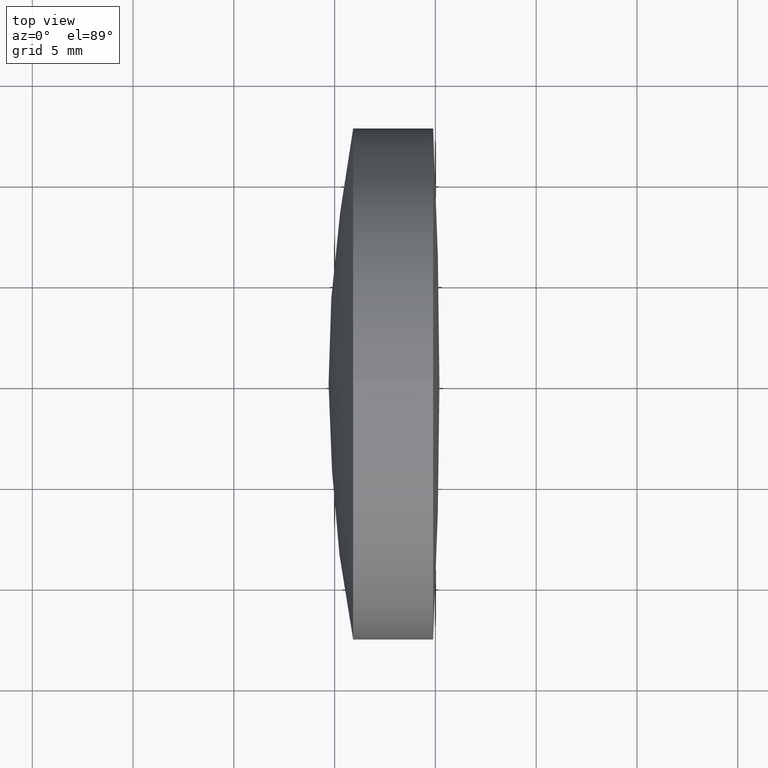
[diagram: clean part render]
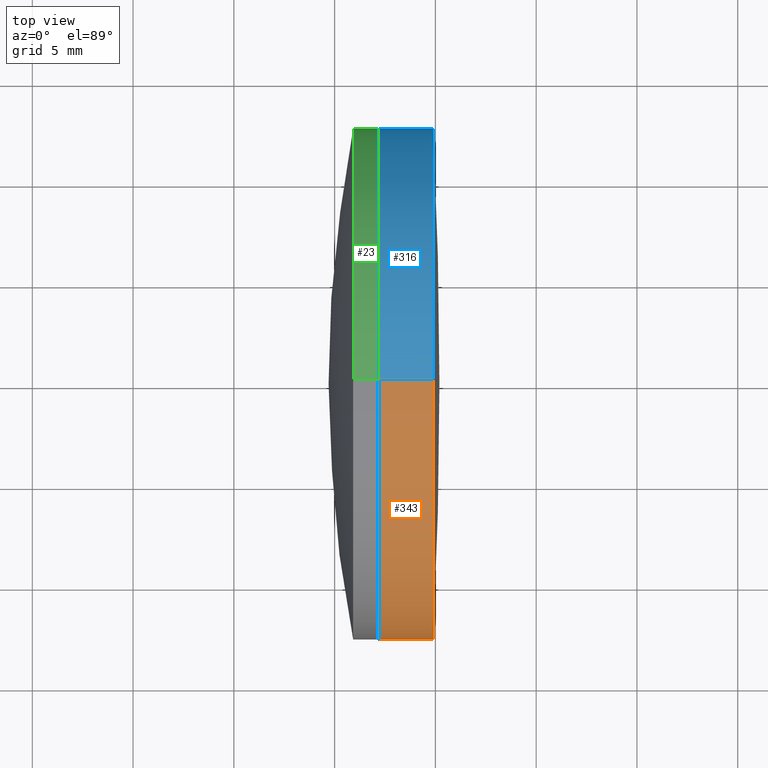
[diagram: same view with three faces highlighted in distinct colors, each labeled with its STEP entity id]
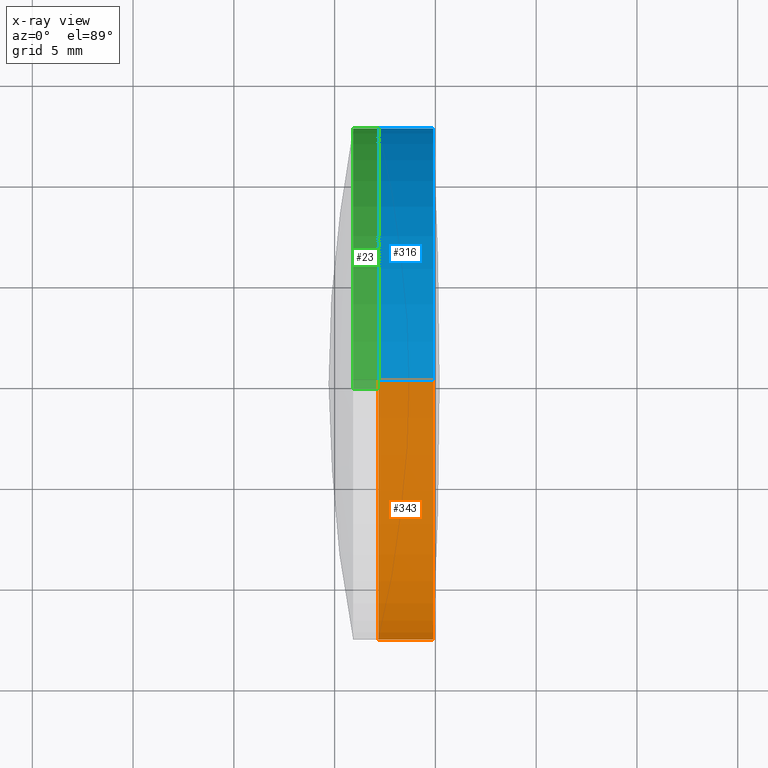
[diagram: x-ray of the same camera — body ghosted, the three highlighted faces saturated]
A machine part, top view with three faces highlighted in distinct colors.
The next image is the same camera in x-ray (body ghosted, the three faces saturated) — at least one of them is partly hidden behind the body in this view.
Their STEP definitions:

[orange] entity #343 — the highlighted cylindrical surface (partial cylindrical patch) has radius 12.7 mm, axis along (-1, -0, -0).
#15 = DIRECTION ( 'NONE',  ( 0.0000000000000000000, 0.0000000000000000000, 1.000000000000000000 ) ) ;
#25 = FACE_OUTER_BOUND ( 'NONE', #94, .T. ) ;
#28 = DIRECTION ( 'NONE',  ( 0.0000000000000000000, 0.0000000000000000000, 1.000000000000000000 ) ) ;
#41 = VERTEX_POINT ( 'NONE', #43 ) ;
#43 = CARTESIAN_POINT ( 'NONE',  ( 304.8890609031180400, 1.555301434917140200E-015, -12.70000000000001000 ) ) ;
#48 = ORIENTED_EDGE ( 'NONE', *, *, #153, .F. ) ;
#52 = CARTESIAN_POINT ( 'NONE',  ( -0.5519199926577972300, 1.555301434917141000E-015, -12.70000000000002100 ) ) ;
#56 = CARTESIAN_POINT ( 'NONE',  ( 304.8890609031180400, 0.0000000000000000000, 12.70000000000001000 ) ) ;
#65 = ORIENTED_EDGE ( 'NONE', *, *, #71, .T. ) ;
#67 = CARTESIAN_POINT ( 'NONE',  ( -0.5519199926577972300, 0.0000000000000000000, 0.0000000000000000000 ) ) ;
#70 = AXIS2_PLACEMENT_3D ( 'NONE', #104, #302, #346 ) ;
#71 = EDGE_CURVE ( 'NONE', #41, #274, #241, .T. ) ;
#80 = VERTEX_POINT ( 'NONE', #101 ) ;
#94 = EDGE_LOOP ( 'NONE', ( #48, #65, #100, #318 ) ) ;
#100 = ORIENTED_EDGE ( 'NONE', *, *, #138, .T. ) ;
#101 = CARTESIAN_POINT ( 'NONE',  ( 302.1767490561337600, 1.555301434917142000E-015, -12.70000000000002200 ) ) ;
#104 = CARTESIAN_POINT ( 'NONE',  ( 304.8890609031180400, 0.0000000000000000000, 0.0000000000000000000 ) ) ;
#138 = EDGE_CURVE ( 'NONE', #274, #191, #196, .T. ) ;
#153 = EDGE_CURVE ( 'NONE', #41, #80, #167, .T. ) ;
#161 = DIRECTION ( 'NONE',  ( -1.000000000000000000, -0.0000000000000000000, -0.0000000000000000000 ) ) ;
#167 = LINE ( 'NONE', #52, #314 ) ;
#170 = DIRECTION ( 'NONE',  ( -1.000000000000000000, -0.0000000000000000000, -0.0000000000000000000 ) ) ;
#175 = AXIS2_PLACEMENT_3D ( 'NONE', #67, #345, #28 ) ;
#183 = DIRECTION ( 'NONE',  ( -1.000000000000000000, -0.0000000000000000000, -0.0000000000000000000 ) ) ;
#191 = VERTEX_POINT ( 'NONE', #333 ) ;
#196 = LINE ( 'NONE', #328, #276 ) ;
#241 = CIRCLE ( 'NONE', #70, 12.70000000000001000 ) ;
#268 = CYLINDRICAL_SURFACE ( 'NONE', #175, 12.70000000000002100 ) ;
#274 = VERTEX_POINT ( 'NONE', #56 ) ;
#276 = VECTOR ( 'NONE', #161, 1000.000000000000000 ) ;
#287 = EDGE_CURVE ( 'NONE', #80, #191, #319, .T. ) ;
#302 = DIRECTION ( 'NONE',  ( -1.000000000000000000, -0.0000000000000000000, -0.0000000000000000000 ) ) ;
#311 = AXIS2_PLACEMENT_3D ( 'NONE', #335, #170, #15 ) ;
#314 = VECTOR ( 'NONE', #183, 1000.000000000000000 ) ;
#318 = ORIENTED_EDGE ( 'NONE', *, *, #287, .F. ) ;
#319 = CIRCLE ( 'NONE', #311, 12.70000000000003100 ) ;
#328 = CARTESIAN_POINT ( 'NONE',  ( -0.5519199926577972300, 0.0000000000000000000, 12.70000000000002100 ) ) ;
#333 = CARTESIAN_POINT ( 'NONE',  ( 302.1767490561337600, 0.0000000000000000000, 12.70000000000002900 ) ) ;
#335 = CARTESIAN_POINT ( 'NONE',  ( 302.1767490561337600, 0.0000000000000000000, 0.0000000000000000000 ) ) ;
#343 = ADVANCED_FACE ( 'NONE', ( #25 ), #268, .T. ) ;
#345 = DIRECTION ( 'NONE',  ( -1.000000000000000000, -0.0000000000000000000, -0.0000000000000000000 ) ) ;
#346 = DIRECTION ( 'NONE',  ( 0.0000000000000000000, 0.0000000000000000000, 1.000000000000000000 ) ) ;

[blue] entity #316 — the highlighted cylindrical surface (partial cylindrical patch) has radius 12.7 mm, axis along (-1, -0, -0).
#16 = DIRECTION ( 'NONE',  ( 0.0000000000000000000, 0.0000000000000000000, 1.000000000000000000 ) ) ;
#21 = EDGE_CURVE ( 'NONE', #191, #80, #323, .T. ) ;
#41 = VERTEX_POINT ( 'NONE', #43 ) ;
#43 = CARTESIAN_POINT ( 'NONE',  ( 304.8890609031180400, 1.555301434917140200E-015, -12.70000000000001000 ) ) ;
#52 = CARTESIAN_POINT ( 'NONE',  ( -0.5519199926577972300, 1.555301434917141000E-015, -12.70000000000002100 ) ) ;
#56 = CARTESIAN_POINT ( 'NONE',  ( 304.8890609031180400, 0.0000000000000000000, 12.70000000000001000 ) ) ;
#73 = DIRECTION ( 'NONE',  ( -1.000000000000000000, -0.0000000000000000000, -0.0000000000000000000 ) ) ;
#77 = ORIENTED_EDGE ( 'NONE', *, *, #138, .F. ) ;
#80 = VERTEX_POINT ( 'NONE', #101 ) ;
#101 = CARTESIAN_POINT ( 'NONE',  ( 302.1767490561337600, 1.555301434917142000E-015, -12.70000000000002200 ) ) ;
#108 = AXIS2_PLACEMENT_3D ( 'NONE', #231, #73, #205 ) ;
#121 = AXIS2_PLACEMENT_3D ( 'NONE', #159, #219, #16 ) ;
#125 = CARTESIAN_POINT ( 'NONE',  ( -0.5519199926577972300, 0.0000000000000000000, 0.0000000000000000000 ) ) ;
#127 = CYLINDRICAL_SURFACE ( 'NONE', #142, 12.70000000000002100 ) ;
#138 = EDGE_CURVE ( 'NONE', #274, #191, #196, .T. ) ;
#141 = EDGE_LOOP ( 'NONE', ( #285, #152, #237, #77 ) ) ;
#142 = AXIS2_PLACEMENT_3D ( 'NONE', #125, #194, #226 ) ;
#152 = ORIENTED_EDGE ( 'NONE', *, *, #153, .T. ) ;
#153 = EDGE_CURVE ( 'NONE', #41, #80, #167, .T. ) ;
#159 = CARTESIAN_POINT ( 'NONE',  ( 304.8890609031180400, 0.0000000000000000000, 0.0000000000000000000 ) ) ;
#161 = DIRECTION ( 'NONE',  ( -1.000000000000000000, -0.0000000000000000000, -0.0000000000000000000 ) ) ;
#167 = LINE ( 'NONE', #52, #314 ) ;
#183 = DIRECTION ( 'NONE',  ( -1.000000000000000000, -0.0000000000000000000, -0.0000000000000000000 ) ) ;
#188 = FACE_OUTER_BOUND ( 'NONE', #141, .T. ) ;
#191 = VERTEX_POINT ( 'NONE', #333 ) ;
#194 = DIRECTION ( 'NONE',  ( -1.000000000000000000, -0.0000000000000000000, -0.0000000000000000000 ) ) ;
#196 = LINE ( 'NONE', #328, #276 ) ;
#205 = DIRECTION ( 'NONE',  ( 0.0000000000000000000, 0.0000000000000000000, 1.000000000000000000 ) ) ;
#217 = CIRCLE ( 'NONE', #121, 12.70000000000001000 ) ;
#219 = DIRECTION ( 'NONE',  ( -1.000000000000000000, -0.0000000000000000000, -0.0000000000000000000 ) ) ;
#226 = DIRECTION ( 'NONE',  ( 0.0000000000000000000, 0.0000000000000000000, 1.000000000000000000 ) ) ;
#231 = CARTESIAN_POINT ( 'NONE',  ( 302.1767490561337600, 0.0000000000000000000, 0.0000000000000000000 ) ) ;
#237 = ORIENTED_EDGE ( 'NONE', *, *, #21, .F. ) ;
#274 = VERTEX_POINT ( 'NONE', #56 ) ;
#276 = VECTOR ( 'NONE', #161, 1000.000000000000000 ) ;
#285 = ORIENTED_EDGE ( 'NONE', *, *, #338, .T. ) ;
#314 = VECTOR ( 'NONE', #183, 1000.000000000000000 ) ;
#316 = ADVANCED_FACE ( 'NONE', ( #188 ), #127, .T. ) ;
#323 = CIRCLE ( 'NONE', #108, 12.70000000000003100 ) ;
#328 = CARTESIAN_POINT ( 'NONE',  ( -0.5519199926577972300, 0.0000000000000000000, 12.70000000000002100 ) ) ;
#333 = CARTESIAN_POINT ( 'NONE',  ( 302.1767490561337600, 0.0000000000000000000, 12.70000000000002900 ) ) ;
#338 = EDGE_CURVE ( 'NONE', #274, #41, #217, .T. ) ;

[green] entity #23 — the highlighted cylindrical surface (partial cylindrical patch) has radius 12.7 mm, axis along (-1, -0, -0).
#12 = CIRCLE ( 'NONE', #332, 12.70000000000000600 ) ;
#23 = ADVANCED_FACE ( 'NONE', ( #91 ), #252, .T. ) ;
#24 = DIRECTION ( 'NONE',  ( -1.000000000000000000, -0.0000000000000000000, -0.0000000000000000000 ) ) ;
#39 = CARTESIAN_POINT ( 'NONE',  ( 302.1767490561337600, 0.0000000000000000000, 12.70000000000000600 ) ) ;
#76 = ORIENTED_EDGE ( 'NONE', *, *, #117, .F. ) ;
#79 = CARTESIAN_POINT ( 'NONE',  ( 302.1767490561337600, 1.555301434917139200E-015, -12.70000000000000600 ) ) ;
#82 = DIRECTION ( 'NONE',  ( -1.000000000000000000, -0.0000000000000000000, -0.0000000000000000000 ) ) ;
#89 = AXIS2_PLACEMENT_3D ( 'NONE', #243, #82, #275 ) ;
#91 = FACE_OUTER_BOUND ( 'NONE', #149, .T. ) ;
#95 = VECTOR ( 'NONE', #214, 1000.000000000000000 ) ;
#97 = EDGE_CURVE ( 'NONE', #321, #264, #211, .T. ) ;
#99 = DIRECTION ( 'NONE',  ( 0.0000000000000000000, 0.0000000000000000000, 1.000000000000000000 ) ) ;
#110 = CARTESIAN_POINT ( 'NONE',  ( 124.5233095260452400, 0.0000000000000000000, 12.70000000000000600 ) ) ;
#116 = DIRECTION ( 'NONE',  ( -1.000000000000000000, -0.0000000000000000000, -0.0000000000000000000 ) ) ;
#117 = EDGE_CURVE ( 'NONE', #201, #264, #293, .T. ) ;
#118 = ORIENTED_EDGE ( 'NONE', *, *, #97, .T. ) ;
#132 = CARTESIAN_POINT ( 'NONE',  ( 124.5233095260452400, 0.0000000000000000000, 0.0000000000000000000 ) ) ;
#149 = EDGE_LOOP ( 'NONE', ( #203, #118, #76, #210 ) ) ;
#154 = DIRECTION ( 'NONE',  ( -1.000000000000000000, -0.0000000000000000000, -0.0000000000000000000 ) ) ;
#166 = CARTESIAN_POINT ( 'NONE',  ( 300.9207308904956900, -1.555301434917137800E-015, 12.69999999999999900 ) ) ;
#182 = AXIS2_PLACEMENT_3D ( 'NONE', #132, #154, #99 ) ;
#187 = EDGE_CURVE ( 'NONE', #309, #201, #220, .T. ) ;
#192 = VECTOR ( 'NONE', #24, 1000.000000000000000 ) ;
#201 = VERTEX_POINT ( 'NONE', #166 ) ;
#203 = ORIENTED_EDGE ( 'NONE', *, *, #306, .T. ) ;
#210 = ORIENTED_EDGE ( 'NONE', *, *, #187, .F. ) ;
#211 = LINE ( 'NONE', #236, #192 ) ;
#214 = DIRECTION ( 'NONE',  ( -1.000000000000000000, -0.0000000000000000000, -0.0000000000000000000 ) ) ;
#220 = LINE ( 'NONE', #110, #95 ) ;
#230 = DIRECTION ( 'NONE',  ( 0.0000000000000000000, 0.0000000000000000000, 1.000000000000000000 ) ) ;
#236 = CARTESIAN_POINT ( 'NONE',  ( 124.5233095260452400, 1.555301434917139200E-015, -12.70000000000000600 ) ) ;
#243 = CARTESIAN_POINT ( 'NONE',  ( 300.9207308904956900, 0.0000000000000000000, 0.0000000000000000000 ) ) ;
#252 = CYLINDRICAL_SURFACE ( 'NONE', #182, 12.70000000000000600 ) ;
#264 = VERTEX_POINT ( 'NONE', #282 ) ;
#275 = DIRECTION ( 'NONE',  ( 0.0000000000000000000, 0.0000000000000000000, 1.000000000000000000 ) ) ;
#282 = CARTESIAN_POINT ( 'NONE',  ( 300.9207308904956900, 0.0000000000000000000, -12.69999999999999200 ) ) ;
#284 = CARTESIAN_POINT ( 'NONE',  ( 302.1767490561337600, 0.0000000000000000000, 0.0000000000000000000 ) ) ;
#293 = CIRCLE ( 'NONE', #89, 12.70000000000000600 ) ;
#306 = EDGE_CURVE ( 'NONE', #309, #321, #12, .T. ) ;
#309 = VERTEX_POINT ( 'NONE', #39 ) ;
#321 = VERTEX_POINT ( 'NONE', #79 ) ;
#332 = AXIS2_PLACEMENT_3D ( 'NONE', #284, #116, #230 ) ;